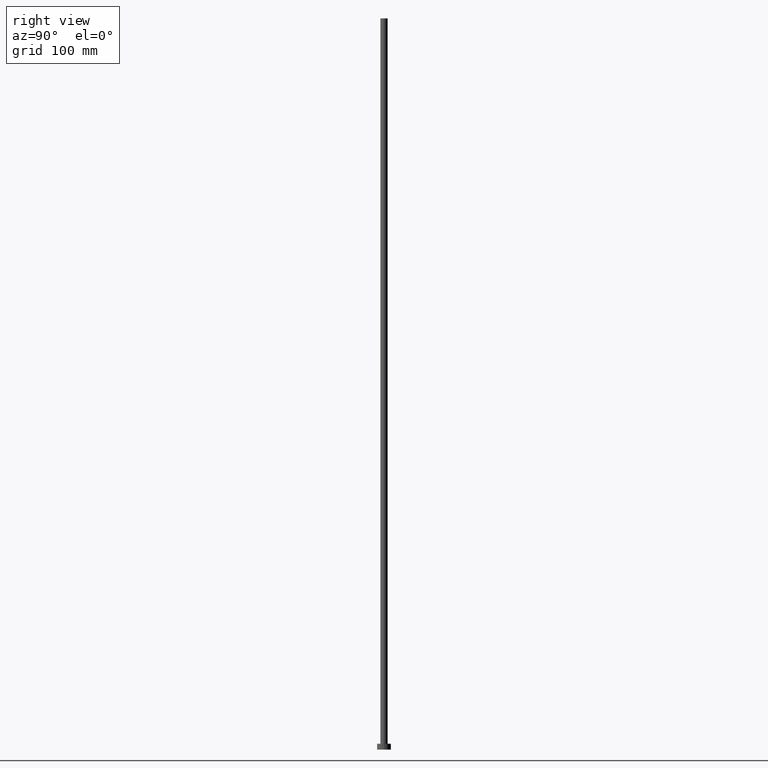
[diagram: clean part render]
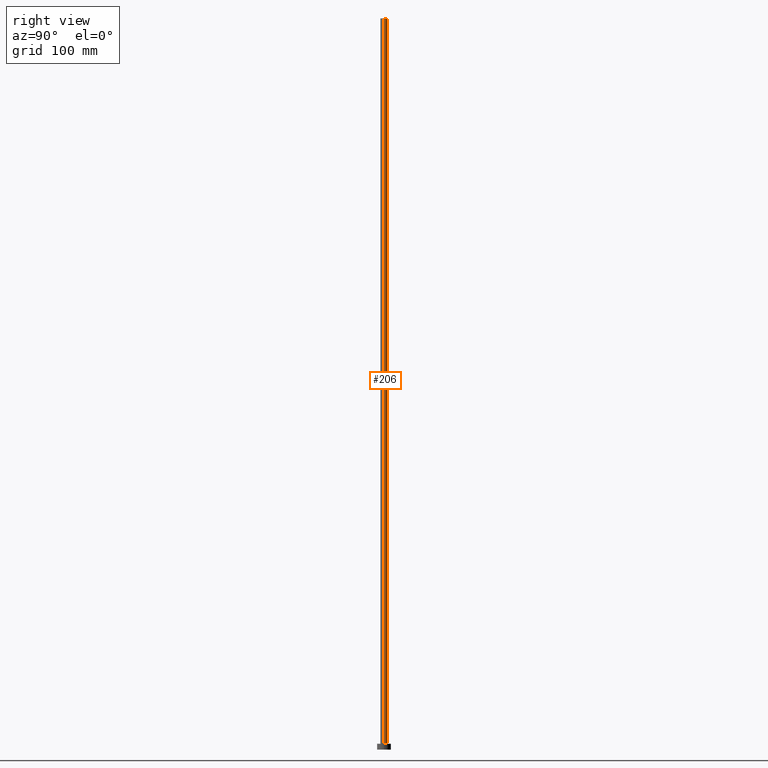
[diagram: same view with one face highlighted and labeled with its STEP entity id]
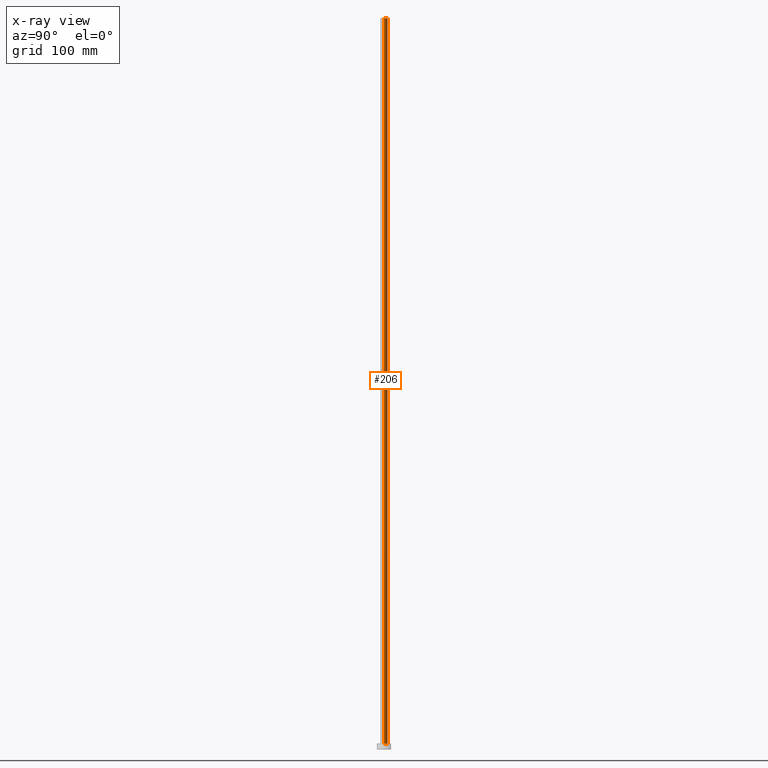
[diagram: x-ray of the same camera — body ghosted, the highlighted face saturated]
A machine part, right view. The second image highlights one B-rep face of the part: STEP entity #206.
The next image is the same camera in x-ray: the body ghosted, the highlighted face saturated — about 0% of this face is hidden behind the body in this view.
In plain terms, the highlighted cylindrical surface (edge-blend (fillet) strip) has radius 3.1 mm, axis along (-0, -0, -1).
Its self-contained STEP definition (entity closure, byte-faithful):
#6 = DIRECTION ( 'NONE',  ( -0.000000000000000000, -0.000000000000000000, -1.000000000000000000 ) ) ;
#7 = VECTOR ( 'NONE', #91, 1000.000000000000000 ) ;
#9 = ORIENTED_EDGE ( 'NONE', *, *, #67, .T. ) ;
#10 = LINE ( 'NONE', #225, #7 ) ;
#37 = DIRECTION ( 'NONE',  ( 1.000000000000000000, 0.000000000000000000, 0.000000000000000000 ) ) ;
#48 = CARTESIAN_POINT ( 'NONE',  ( 3.100000000000000089, 3.796405077356794918E-16, 630.0000000000000000 ) ) ;
#63 = DIRECTION ( 'NONE',  ( -0.000000000000000000, -0.000000000000000000, -1.000000000000000000 ) ) ;
#67 = EDGE_CURVE ( 'NONE', #119, #217, #131, .T. ) ;
#69 = ORIENTED_EDGE ( 'NONE', *, *, #144, .F. ) ;
#70 = VERTEX_POINT ( 'NONE', #203 ) ;
#90 = EDGE_LOOP ( 'NONE', ( #69, #9, #117, #182 ) ) ;
#91 = DIRECTION ( 'NONE',  ( -0.000000000000000000, -0.000000000000000000, -1.000000000000000000 ) ) ;
#94 = EDGE_CURVE ( 'NONE', #70, #169, #10, .T. ) ;
#99 = CARTESIAN_POINT ( 'NONE',  ( 0.000000000000000000, 0.000000000000000000, 630.0000000000000000 ) ) ;
#100 = AXIS2_PLACEMENT_3D ( 'NONE', #235, #157, #103 ) ;
#102 = CARTESIAN_POINT ( 'NONE',  ( 0.000000000000000000, 0.000000000000000000, 630.0000000000000000 ) ) ;
#103 = DIRECTION ( 'NONE',  ( 1.000000000000000000, 0.000000000000000000, 0.000000000000000000 ) ) ;
#104 = FACE_OUTER_BOUND ( 'NONE', #90, .T. ) ;
#108 = AXIS2_PLACEMENT_3D ( 'NONE', #102, #176, #37 ) ;
#114 = CIRCLE ( 'NONE', #100, 3.100000000000000089 ) ;
#117 = ORIENTED_EDGE ( 'NONE', *, *, #183, .T. ) ;
#119 = VERTEX_POINT ( 'NONE', #143 ) ;
#126 = CARTESIAN_POINT ( 'NONE',  ( -3.100000000000000089, 0.000000000000000000, 5.000000000000000000 ) ) ;
#131 = LINE ( 'NONE', #48, #227 ) ;
#143 = CARTESIAN_POINT ( 'NONE',  ( 3.100000000000000089, 3.796405077356794918E-16, 630.0000000000000000 ) ) ;
#144 = EDGE_CURVE ( 'NONE', #119, #70, #161, .T. ) ;
#157 = DIRECTION ( 'NONE',  ( 0.000000000000000000, 0.000000000000000000, 1.000000000000000000 ) ) ;
#161 = CIRCLE ( 'NONE', #108, 3.100000000000000089 ) ;
#169 = VERTEX_POINT ( 'NONE', #126 ) ;
#171 = AXIS2_PLACEMENT_3D ( 'NONE', #99, #63, #254 ) ;
#176 = DIRECTION ( 'NONE',  ( 0.000000000000000000, 0.000000000000000000, 1.000000000000000000 ) ) ;
#179 = CYLINDRICAL_SURFACE ( 'NONE', #171, 3.100000000000000089 ) ;
#182 = ORIENTED_EDGE ( 'NONE', *, *, #94, .F. ) ;
#183 = EDGE_CURVE ( 'NONE', #217, #169, #114, .T. ) ;
#203 = CARTESIAN_POINT ( 'NONE',  ( -3.100000000000000089, 0.000000000000000000, 630.0000000000000000 ) ) ;
#206 = ADVANCED_FACE ( 'NONE', ( #104 ), #179, .T. ) ;
#217 = VERTEX_POINT ( 'NONE', #234 ) ;
#225 = CARTESIAN_POINT ( 'NONE',  ( -3.100000000000000089, 0.000000000000000000, 630.0000000000000000 ) ) ;
#227 = VECTOR ( 'NONE', #6, 1000.000000000000000 ) ;
#234 = CARTESIAN_POINT ( 'NONE',  ( 3.100000000000000089, 3.796405077356794918E-16, 5.000000000000000000 ) ) ;
#235 = CARTESIAN_POINT ( 'NONE',  ( 0.000000000000000000, 0.000000000000000000, 5.000000000000000000 ) ) ;
#254 = DIRECTION ( 'NONE',  ( -1.000000000000000000, 0.000000000000000000, 0.000000000000000000 ) ) ;